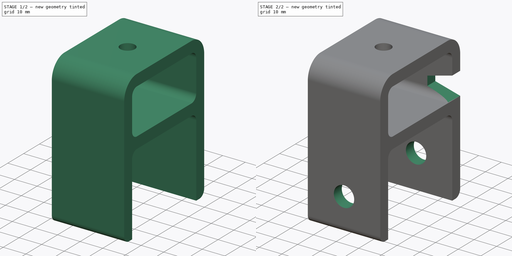
[diagram: build sequence overview — one tinted view per stage of 2, left to right]
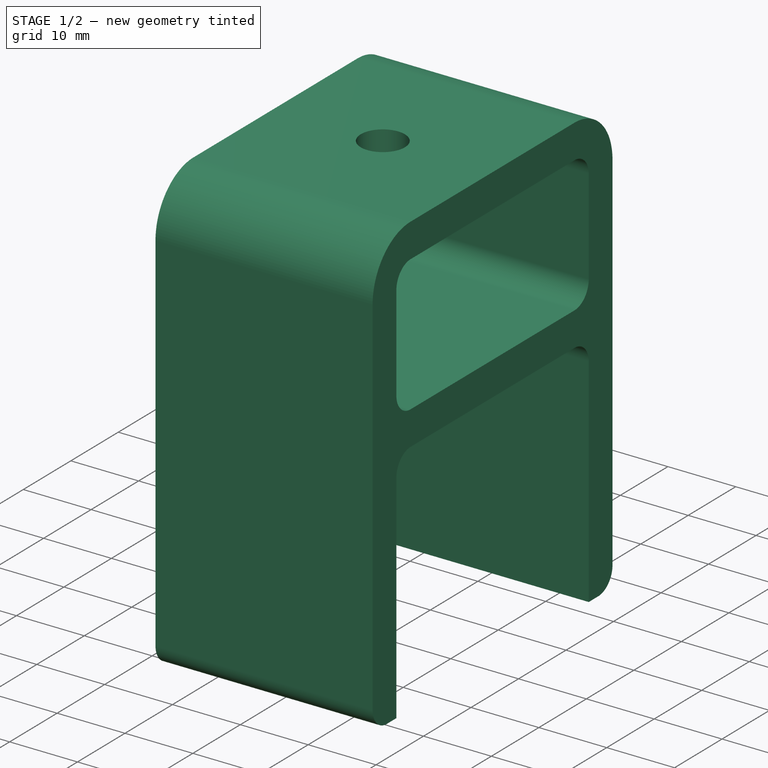
[diagram: stage 1 of 2 — iso view after this stage's code; geometry added in this stage tinted green]
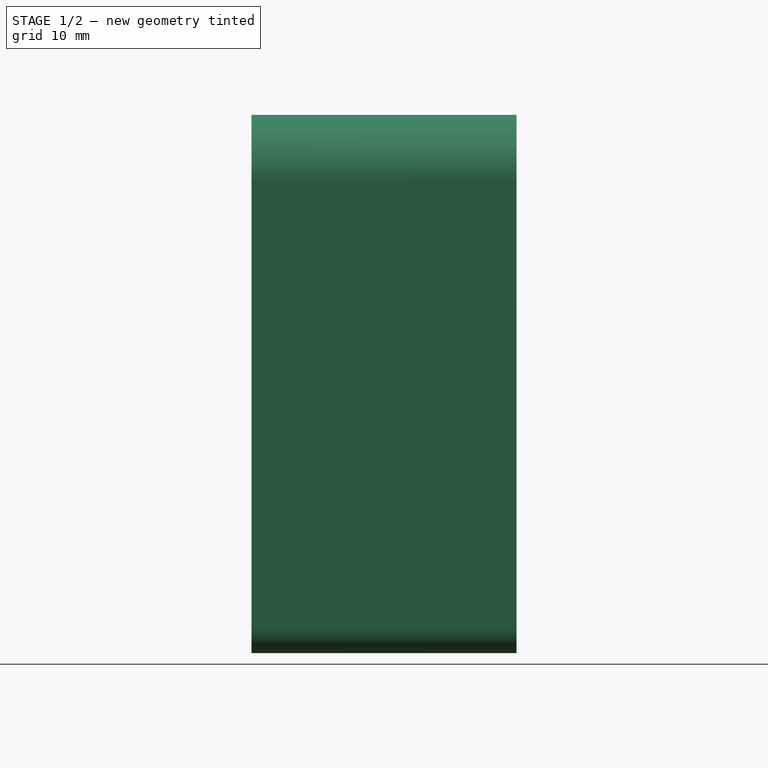
[diagram: stage 1 of 2 — front view after this stage's code; geometry added in this stage tinted green]
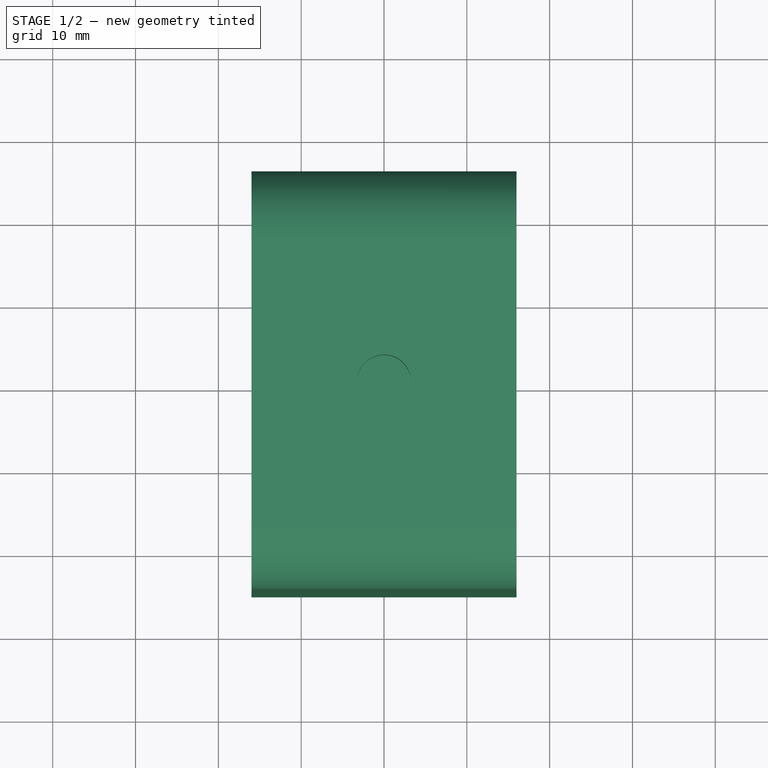
[diagram: stage 1 of 2 — top view after this stage's code; geometry added in this stage tinted green]
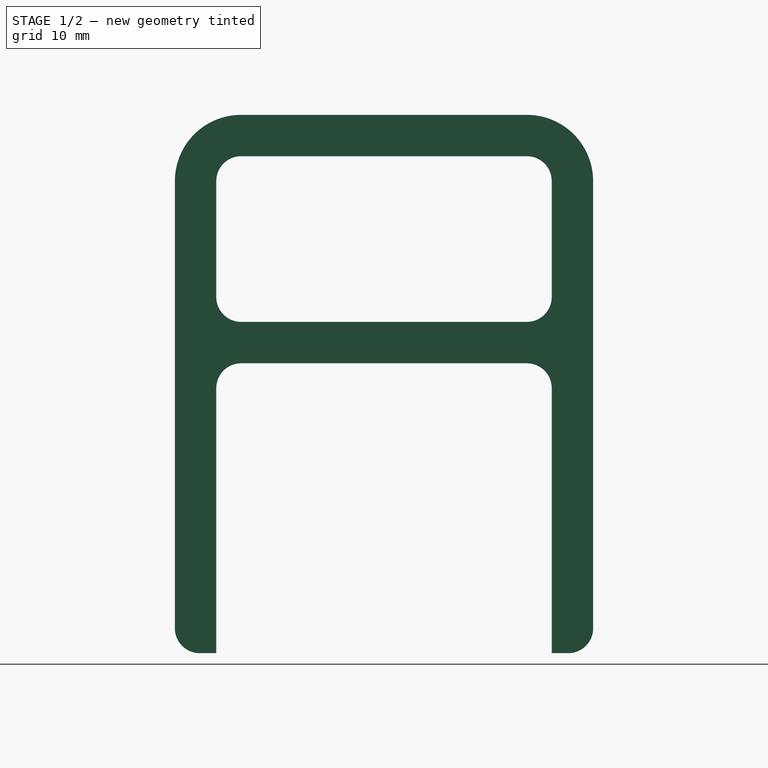
[diagram: stage 1 of 2 — right view after this stage's code; geometry added in this stage tinted green]
FCSTD DOCUMENT  (FreeCAD 0.19R)
Label: lens_mt_rail
License: All rights reserved
LicenseURL: http://en.wikipedia.org/wiki/All_rights_reserved
objects: Sketcher::SketchObject×4, PartDesign::Pocket×3, Spreadsheet::Sheet×1, PartDesign::Pad×1, PartDesign::Plane×1, PartDesign::Body×1, App::Part×1
note: 14 computed .brp shape members not serialized (recipe doc carries the construction recipe); baked Part::Feature solids carry a one-line shape summary decoded from their .brp

FEATURE [Spreadsheet::Sheet] Spreadsheet  label="pp"
  cells = A2=std rad; B2(std_rad)==3mm; A4=Tol rail width; B4(tol_rail_width)==0.5mm; A5=rail width; B5(rail_width)==40mm; A6=tot width; B6(tot_width)==rail_width + tol_rail_width; A8=std wall thick; B8(wall_thick)==5mm; A10=mt hole loc tol; B10(tol_mt_hole_loc)==0.25mm; A11=mt hole diam; B11(mt_hole_diam)==9mm; C11=for M8; A13=a key height clear; B13(key_height_clear)=10; A15=cam mt hole; B15(cam_mt_hole)==6.5mm; C15=for M6; A17=mt width; B17(mt_width)==32mm
FEATURE [Sketcher::SketchObject] Sketch
  FullyConstrained = true
  MapMode = 5
  Placement = pos=(0,0,0) rot=(0.57735,0.57735,0.57735;2.0944rad)
  expr: Constraints[53] = <<pp>>.wall_thick
  expr: Constraints[52] = <<pp>>.wall_thick
  expr: Constraints[29] = <<pp>>.wall_thick
  expr: Constraints[26] = <<pp>>.std_rad
  expr: Constraints[27] = <<pp>>.std_rad
  expr: Constraints[22] = <<pp>>.tot_width
  expr: Constraints[28] = <<pp>>.wall_thick
  expr: Constraints[21] = <<pp>>.rail_width - <<pp>>.wall_thick
  sketch-geometry (27):
    g0: LineSegment StartX=3 StartY=0 StartZ=0 EndX=37.5 EndY=0 EndZ=0
    g1: LineSegment StartX=0 StartY=-3 StartZ=0 EndX=0 EndY=-35 EndZ=0
    g2: LineSegment StartX=40.5 StartY=-3 StartZ=0 EndX=40.5 EndY=-35 EndZ=0
    g3: LineSegment StartX=0 StartY=-35 StartZ=0 EndX=-2 EndY=-35 EndZ=0
    g4: LineSegment StartX=-5 StartY=-32 StartZ=0 EndX=-5 EndY=22 EndZ=0
    g5: LineSegment StartX=40.5 StartY=-35 StartZ=0 EndX=42.5 EndY=-35 EndZ=0
    g6: LineSegment StartX=45.5 StartY=-32 StartZ=0 EndX=45.5 EndY=22 EndZ=0
    g7: ArcOfCircle CenterX=-2 CenterY=-32 CenterZ=0 NormalX=0 NormalY=0 NormalZ=1 AngleXU=0 Radius=3 StartAngle=3.14159 EndAngle=4.71239
    g8: ArcOfCircle CenterX=3 CenterY=-3 CenterZ=0 NormalX=0 NormalY=0 NormalZ=1 AngleXU=0 Radius=3 StartAngle=1.5708 EndAngle=3.14159
    g9: ArcOfCircle CenterX=37.5 CenterY=-3 CenterZ=0 NormalX=0 NormalY=0 NormalZ=1 AngleXU=0 Radius=3 StartAngle=0 EndAngle=1.5708
    g10: ArcOfCircle CenterX=42.5 CenterY=-32 CenterZ=0 NormalX=0 NormalY=0 NormalZ=1 AngleXU=0 Radius=3 StartAngle=4.71239 EndAngle=6.28319
    g11: LineSegment StartX=0 StartY=-35 StartZ=0 EndX=40.5 EndY=-35 EndZ=0
    g12: LineSegment StartX=3 StartY=30 StartZ=0 EndX=37.5 EndY=30 EndZ=0
    g13: ArcOfCircle CenterX=3 CenterY=22 CenterZ=0 NormalX=0 NormalY=0 NormalZ=1 AngleXU=0 Radius=3 StartAngle=1.5708 EndAngle=3.14159
    g14: LineSegment StartX=3 StartY=25 StartZ=0 EndX=37.5 EndY=25 EndZ=0
    g15: ArcOfCircle CenterX=37.5 CenterY=22 CenterZ=0 NormalX=0 NormalY=0 NormalZ=1 AngleXU=0 Radius=3 StartAngle=7e-16 EndAngle=1.5708
    g16: LineSegment StartX=40.5 StartY=22 StartZ=0 EndX=40.5 EndY=8 EndZ=0
    g17: ArcOfCircle CenterX=37.5 CenterY=8 CenterZ=0 NormalX=0 NormalY=0 NormalZ=1 AngleXU=0 Radius=3 StartAngle=4.71239 EndAngle=6.28319
    g18: LineSegment StartX=37.5 StartY=5 StartZ=0 EndX=3 EndY=5 EndZ=0
    g19: ArcOfCircle CenterX=3 CenterY=8 CenterZ=0 NormalX=0 NormalY=0 NormalZ=1 AngleXU=0 Radius=3 StartAngle=3.14159 EndAngle=4.71239
    g20: LineSegment StartX=0 StartY=8 StartZ=0 EndX=0 EndY=22 EndZ=0
    g21: GeomPoint X=0 Y=25 Z=0
    g22: GeomPoint X=40.5 Y=5 Z=0
    g23: ArcOfCircle CenterX=37.5 CenterY=22 CenterZ=0 NormalX=0 NormalY=0 NormalZ=1 AngleXU=0 Radius=8 StartAngle=1e-16 EndAngle=1.5708
    g24: ArcOfCircle CenterX=3 CenterY=22 CenterZ=0 NormalX=0 NormalY=0 NormalZ=1 AngleXU=0 Radius=8 StartAngle=1.5708 EndAngle=3.14159
    g25: LineSegment StartX=3 StartY=25 StartZ=0 EndX=3 EndY=30 EndZ=0
    g26: LineSegment StartX=0 StartY=22 StartZ=0 EndX=-5 EndY=22 EndZ=0
  constraints (66):
    c: Horizontal(g0)
    c: Vertical(g1)
    c: Vertical(g2)
    c: Coincident(g3,g1)
    c: Horizontal(g3)
    c: Vertical(g4)
    c: Coincident(g5,g2)
    c: Horizontal(g5)
    c: Vertical(g6)
    c: Tangent(g4,g7) = 1.5708
    c: Tangent(g3,g7) = 1.5708
    c: Tangent(g1,g8) = -1.5708
    c: Tangent(g0,g8) = 1.5708
    c: Tangent(g0,g9) = 1.5708
    c: Tangent(g2,g9) = 1.5708
    c: Tangent(g5,g10) = -1.5708
    c: Tangent(g6,g10) = -1.5708
    c: PointOnObject(g1,g-2)
    c: PointOnObject(g0,g-1)
    c: Equal(g8,g9)
    c: Equal(g7,g10)
    c: DistanceY(g1,g0) = 35
    c: DistanceX(g1,g2) = 40.5
    c: Coincident(g11,g1)
    c: Coincident(g11,g2)
    c: Horizontal(g11)
    c: Radius(g9) = 3
    c: Radius(g7) = 3
    c: DistanceX(g4,g1) = 5
    c: DistanceX(g2,g6) = 5
    c: Horizontal(g12)
    c: Tangent(g13,g14) = 1.5708
    c: Tangent(g14,g15) = 1.5708
    c: Tangent(g15,g16) = 1.5708
    c: Tangent(g16,g17) = 1.5708
    c: Tangent(g17,g18) = 1.5708
    c: Tangent(g18,g19) = 1.5708
    c: Tangent(g19,g20) = 1.5708
    c: Tangent(g20,g13) = 1.5708
    c: Horizontal(g14)
    c: Horizontal(g18)
    c: Vertical(g16)
    c: Vertical(g20)
    c: Equal(g13,g15)
    c: Equal(g15,g17)
    c: Equal(g17,g19)
    c: PointOnObject(g21,g14)
    c: PointOnObject(g21,g20)
    c: PointOnObject(g22,g16)
    c: PointOnObject(g22,g18)
    c: PointOnObject(g21,g-2)
    c: Equal(g9,g17)
    c: DistanceX(g15,g6) = 5
    c: DistanceY(g0,g17) = 5
    c: Tangent(g4,g24) = 1.5708
    c: Tangent(g12,g24) = 1.5708
    c: Coincident(g25,g13)
    c: Coincident(g25,g12)
    c: Coincident(g26,g13)
    c: Coincident(g26,g4)
    c: Vertical(g25)
    c: Horizontal(g26)
    c: Tangent(g23,g6) = -1.5708
    c: Tangent(g23,g12) = 1.5708
    c: Equal(g24,g23)
    c: DistanceY(g17,g14) = 20
FEATURE [PartDesign::Pad] Pad  label="Pad_MainBody"
  Direction = (1,0,0)
  Length = 32
  Length2 = 10
  Midplane = true
  Placement = pos=(0,0,0) rot=(0.57735,0.57735,0.57735;2.0944rad)
  Profile = -> Sketch
  Type = 0
  expr: Length = <<pp>>.mt_width
FEATURE [Sketcher::SketchObject] Sketch014
  FullyConstrained = true
  MapMode = 5
  Placement = pos=(0,0,50) rot=(0,0,1;0rad)
  expr: Constraints[1] = <<pp>>.cam_mt_hole
  sketch-geometry (1):
    g0: Circle CenterX=0 CenterY=20 CenterZ=0 NormalX=0 NormalY=0 NormalZ=1 AngleXU=0 Radius=3.25
  constraints (3):
    c: PointOnObject(g0,g-2)
    c: Diameter(g0) = 6.5
    c: DistanceY(g-1,g0) = 20
FEATURE [Sketcher::SketchObject] Sketch015
  FullyConstrained = true
  MapMode = 5
  Placement = pos=(0,0,0) rot=(1,0,0;1.5708rad)
  expr: Constraints[2] = <<pp>>.rail_width / 2 + <<pp>>.tol_mt_hole_loc
  expr: Constraints[1] = <<pp>>.mt_hole_diam
  sketch-geometry (1):
    g0: Circle CenterX=0 CenterY=-20.25 CenterZ=0 NormalX=0 NormalY=0 NormalZ=1 AngleXU=0 Radius=4.5
  constraints (3):
    c: PointOnObject(g0,g-2)
    c: Diameter(g0) = 9
    c: DistanceY(g0,g-1) = 20.25
FEATURE [PartDesign::Plane] DatumPlane001  label="MidPlane"
  AttachmentOffset = pos=(0,0,-20.25) rot=(0,0,1;0rad)
  Length = 61.4018
  MapMode = 5
  Placement = pos=(0,20.25,-4e-15) rot=(1,0,0;1.5708rad)
  ResizeMode = 0
  Width = 76.4018
  expr: .AttachmentOffset.Base.z = -1 * <<pp>>.tot_width / 2
FEATURE [Sketcher::SketchObject] Sketch016
  FullyConstrained = true
  MapMode = 5
  Placement = pos=(0,20.25,-4e-15) rot=(1,0,0;1.5708rad)
  expr: Constraints[50] = <<pp>>.wall_thick * 2
  expr: Constraints[49] = <<pp>>.key_height_clear
  expr: Constraints[48] = <<pp>>.rail_width
  expr: Constraints[47] = <<pp>>.wall_thick
  expr: Constraints[46] = <<pp>>.mt_width
  sketch-geometry (21):
    g0: LineSegment StartX=-56 StartY=5 StartZ=0 EndX=-16 EndY=5 EndZ=0
    g1: LineSegment StartX=-16 StartY=5 StartZ=0 EndX=-5 EndY=7.94744 EndZ=0
    g2: LineSegment StartX=-5 StartY=7.94744 StartZ=0 EndX=-5 EndY=12.0526 EndZ=0
    g3: LineSegment StartX=-5 StartY=12.0526 StartZ=0 EndX=-16 EndY=15 EndZ=0
    g4: LineSegment StartX=-16 StartY=15 StartZ=0 EndX=-56 EndY=15 EndZ=0
    g5: LineSegment StartX=-56 StartY=5 StartZ=0 EndX=-56 EndY=15 EndZ=0
    g6: LineSegment StartX=5 StartY=12.0526 StartZ=0 EndX=5 EndY=7.94744 EndZ=0
    g7: LineSegment StartX=5 StartY=7.94744 StartZ=0 EndX=16 EndY=5 EndZ=0
    g8: LineSegment StartX=16 StartY=5 StartZ=0 EndX=56 EndY=5 EndZ=0
    g9: LineSegment StartX=56 StartY=5 StartZ=0 EndX=56 EndY=15 EndZ=0
    g10: LineSegment StartX=56 StartY=15 StartZ=0 EndX=16 EndY=15 EndZ=0
    g11: LineSegment StartX=16 StartY=15 StartZ=0 EndX=5 EndY=12.0526 EndZ=0
    g12: LineSegment StartX=-5 StartY=12.0526 StartZ=0 EndX=5 EndY=12.0526 EndZ=0
    g13: LineSegment StartX=-5 StartY=7.94744 StartZ=0 EndX=5 EndY=7.94744 EndZ=0
    g14: LineSegment StartX=-16 StartY=5 StartZ=0 EndX=16 EndY=5 EndZ=0
    g15: LineSegment StartX=-16 StartY=15 StartZ=0 EndX=16 EndY=15 EndZ=0
    g16: GeomPoint X=0 Y=12.0526 Z=0
    g17: GeomPoint X=0 Y=15 Z=0
    g18: GeomPoint X=0 Y=5 Z=0
    g19: LineSegment StartX=16 StartY=15 StartZ=0 EndX=16 EndY=5 EndZ=0
    g20: LineSegment StartX=-16 StartY=5 StartZ=0 EndX=-16 EndY=15 EndZ=0
  constraints (51):
    c: Horizontal(g0)
    c: Coincident(g1,g0)
    c: Coincident(g2,g1)
    c: Vertical(g2)
    c: Coincident(g3,g2)
    c: Coincident(g4,g3)
    c: Horizontal(g4)
    c: Coincident(g5,g0)
    c: Coincident(g5,g4)
    c: Vertical(g6)
    c: Coincident(g7,g6)
    c: Coincident(g8,g7)
    c: Horizontal(g8)
    c: Coincident(g9,g8)
    c: Vertical(g9)
    c: Coincident(g10,g9)
    c: Horizontal(g10)
    c: Coincident(g11,g10)
    c: Coincident(g11,g6)
    c: Vertical(g5)
    c: Coincident(g12,g2)
    c: Coincident(g12,g6)
    c: Horizontal(g12)
    c: Coincident(g13,g1)
    c: Coincident(g13,g6)
    c: Coincident(g14,g0)
    c: Coincident(g14,g7)
    c: Horizontal(g14)
    c: Coincident(g15,g3)
    c: Coincident(g15,g10)
    c: Horizontal(g15)
    c: Horizontal(g13)
    c: PointOnObject(g16,g-2)
    c: PointOnObject(g17,g-2)
    c: PointOnObject(g18,g-2)
    c: Symmetric(g2,g6,g16)
    c: Symmetric(g3,g10,g17)
    c: Symmetric(g0,g7,g18)
    c: Equal(g10,g4)
    c: Angle(g15,g11) = 0.261799
    c: Angle(g7,g14) = 0.261799
    c: Coincident(g19,g10)
    c: Coincident(g19,g7)
    c: Coincident(g20,g0)
    c: Coincident(g20,g3)
    c: Vertical(g19)
    c: DistanceX(g3,g10) = 32
    c: DistanceY(g-1,g7) = 5
    c: DistanceX(g10,g10) = 40
    c: DistanceY(g7,g10) = 10
    c: DistanceX(g13,g13) = 10
FEATURE [PartDesign::Pocket] Pocket007  label="Pocket_CamMt_M6"
  BaseFeature = -> Pad
  Length = 40
  Length2 = 5
  Placement = pos=(0,0,0) rot=(0.57735,0.57735,0.57735;2.0944rad)
  Profile = -> Sketch014
  Type = 0
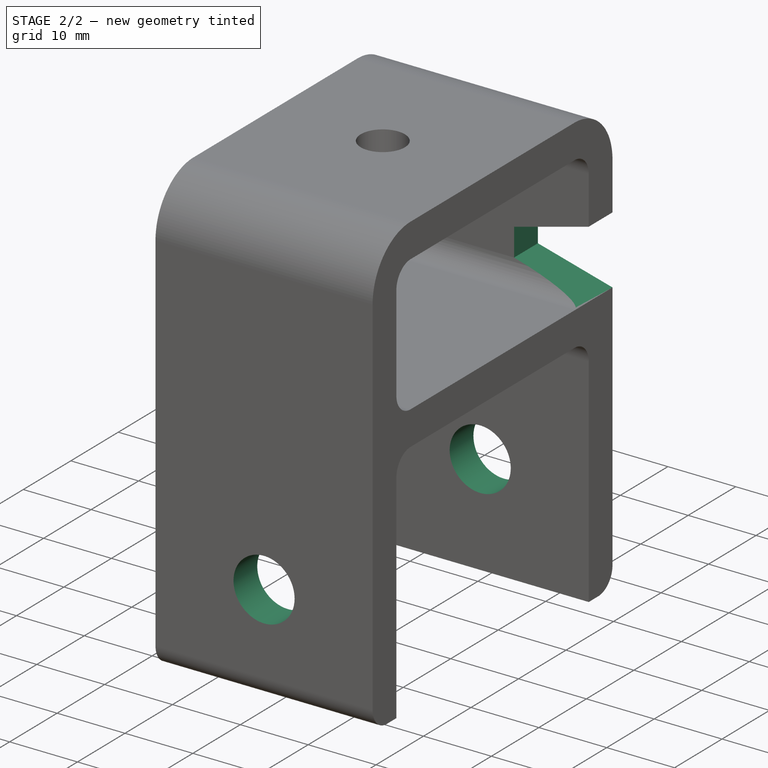
[diagram: stage 2 of 2 — iso view after this stage's code; geometry added in this stage tinted green]
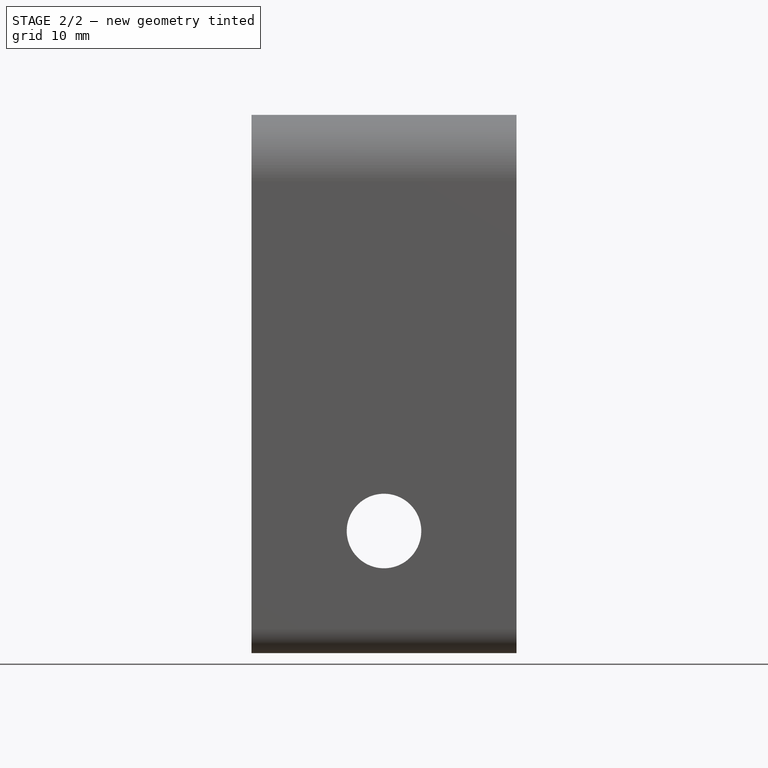
[diagram: stage 2 of 2 — front view after this stage's code; geometry added in this stage tinted green]
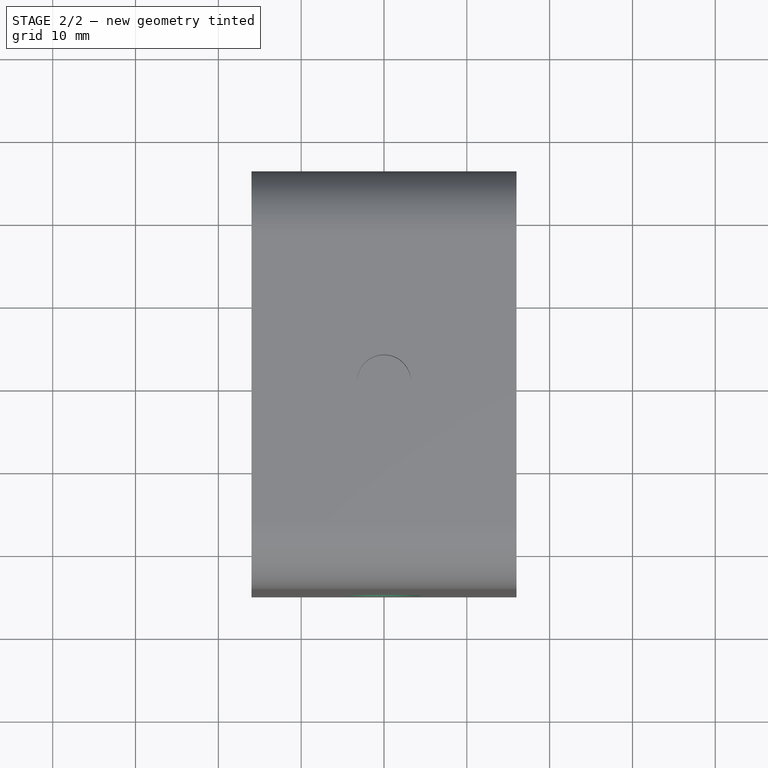
[diagram: stage 2 of 2 — top view after this stage's code; geometry added in this stage tinted green]
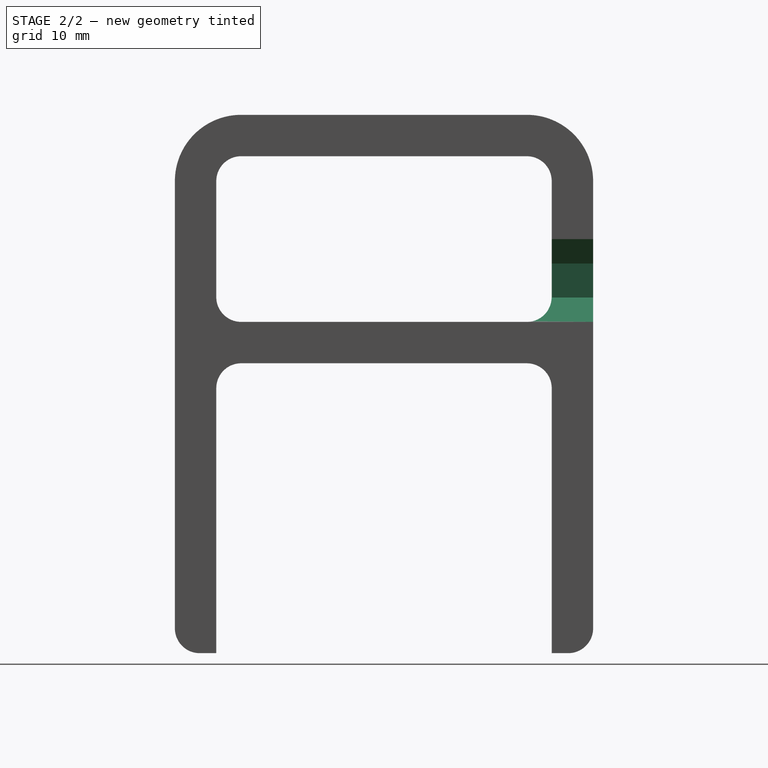
[diagram: stage 2 of 2 — right view after this stage's code; geometry added in this stage tinted green]
FEATURE [PartDesign::Pocket] Pocket008  label="Pocket_RailMt_M8"
  BaseFeature = -> Pocket007
  Length = 5
  Length2 = 5
  Midplane = true
  Placement = pos=(0,0,0) rot=(0.57735,0.57735,0.57735;2.0944rad)
  Profile = -> Sketch015
  Type = 1
FEATURE [PartDesign::Pocket] Pocket009
  BaseFeature = -> Pocket008
  Length = 5
  Length2 = 5
  Placement = pos=(0,0,0) rot=(0.57735,0.57735,0.57735;2.0944rad)
  Profile = -> Sketch016
  Type = 1
FEATURE [PartDesign::Body] Body  label="cam_mt"
  Group = -> [Sketch,Pad,Sketch014,Pocket007,Sketch015,Pocket008,DatumPlane001,Sketch016,Pocket009]
  Origin = -> Origin001
  Tip = -> Pocket009
FEATURE [App::Part] Part  label="cam_mt_part"
  Group = -> [Body]
  Origin = -> Origin
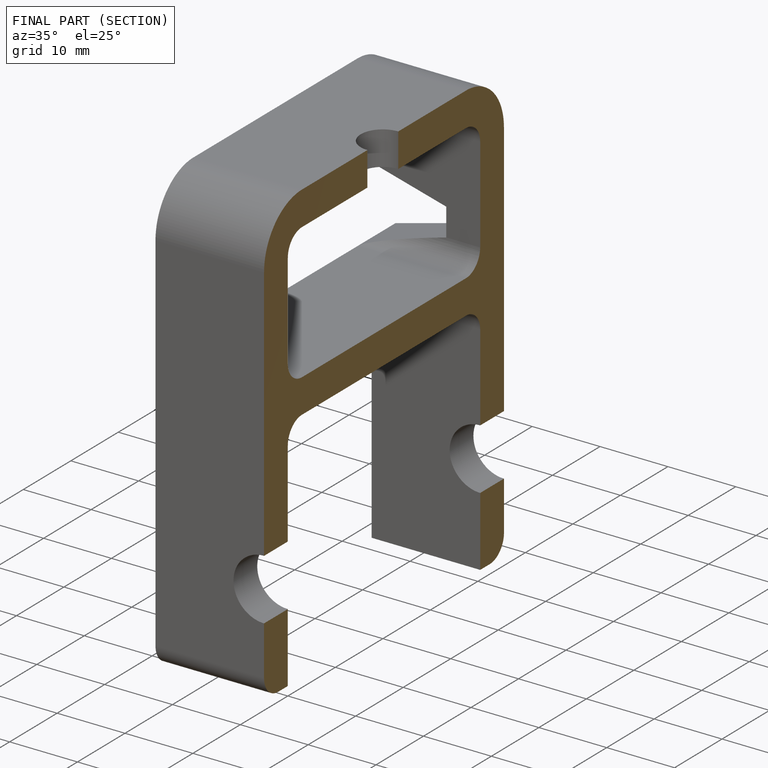
[diagram: finished part — half-section view (interior)]
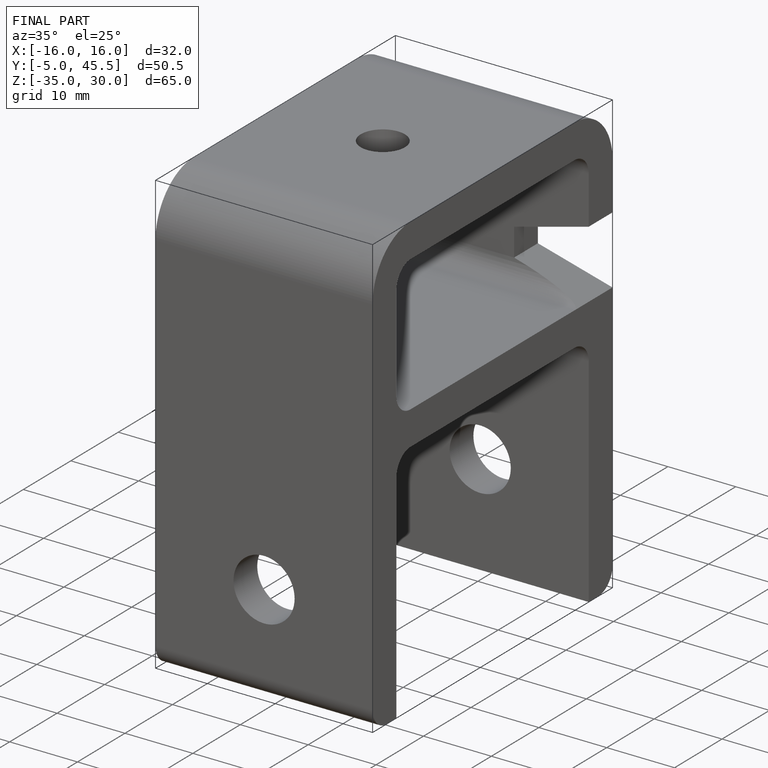
[diagram: finished part — iso view with bounding-box wireframe]
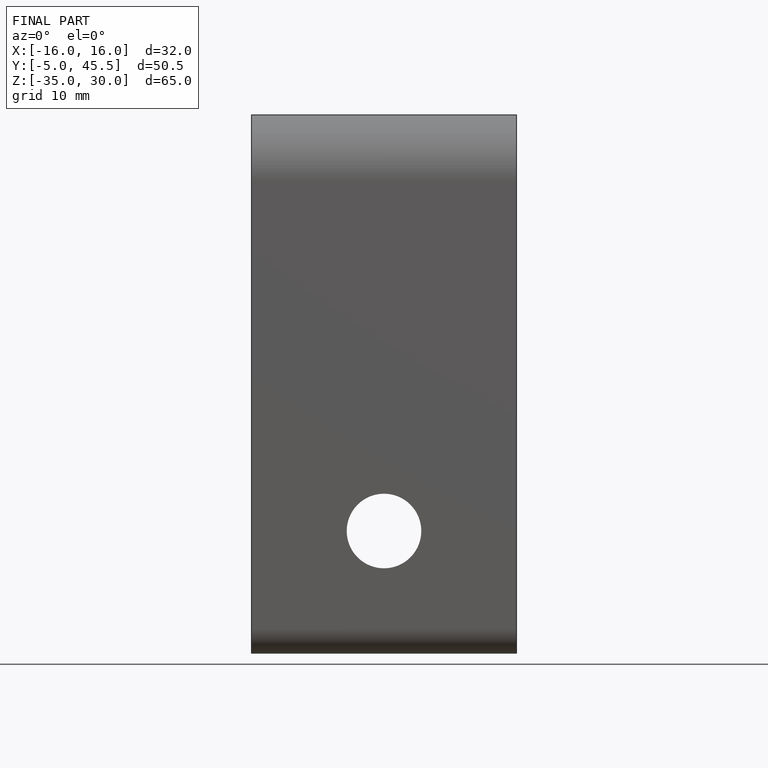
[diagram: finished part — front view with bounding-box wireframe]
